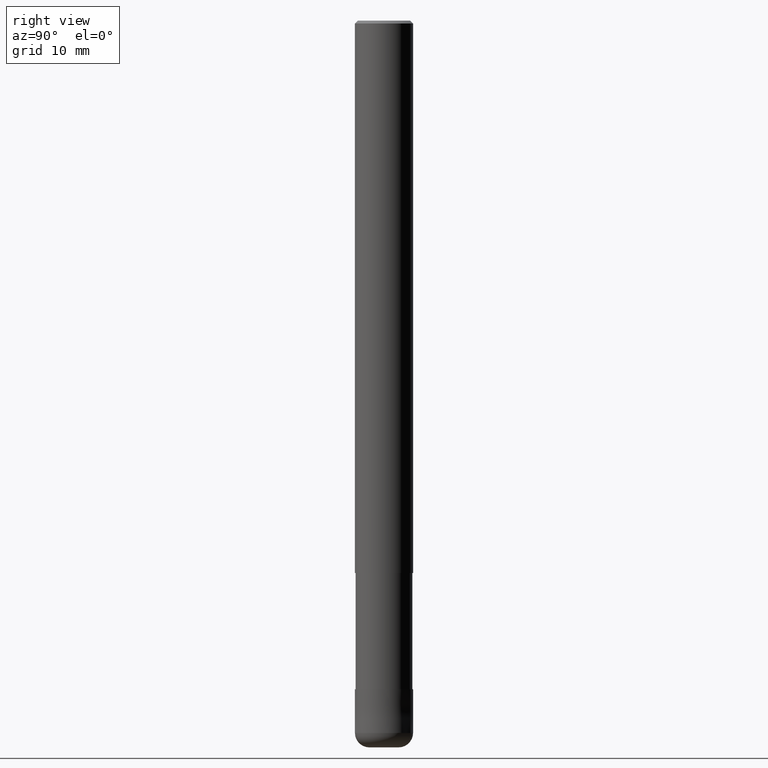
[diagram: clean part render]
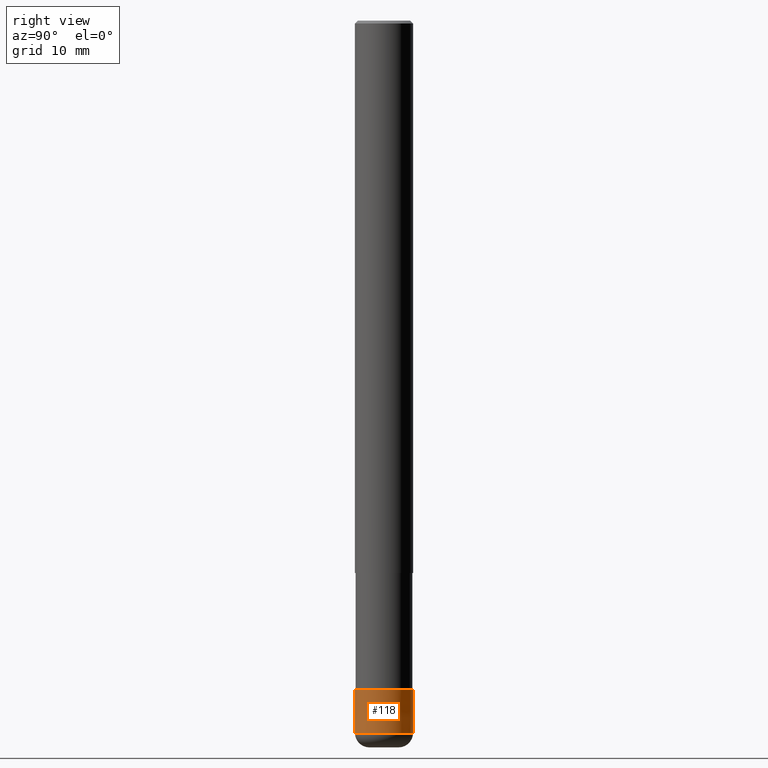
[diagram: same view with one face highlighted and labeled with its STEP entity id]
A machine part, right view. The second image highlights one B-rep face of the part: STEP entity #118.
In plain terms, the highlighted conical surface has half-angle 0.001 deg.
Its self-contained STEP definition (entity closure, byte-faithful):
#92=VERTEX_POINT('',#229);
#118=ADVANCED_FACE('',(#259),#260,.T.);
#124=VERTEX_POINT('',#267);
#126=EDGE_CURVE('',#92,#176,#269,.T.);
#128=EDGE_CURVE('',#124,#192,#271,.T.);
#154=EDGE_CURVE('',#176,#124,#298,.T.);
#166=EDGE_CURVE('',#92,#192,#311,.T.);
#176=VERTEX_POINT('',#322);
#192=VERTEX_POINT('',#341);
#229=CARTESIAN_POINT('',(0.0,3.9999,-92.0));
#259=FACE_OUTER_BOUND('',#411,.T.);
#260=CONICAL_SURFACE('',#412,3.99995,1.66666666651586E-005);
#267=CARTESIAN_POINT('',(4.89842541528951E-016,-4.0,-98.0));
#269=LINE('',#422,#423);
#271=LINE('',#426,#427);
#298=CIRCLE('',#464,4.0);
#311=CIRCLE('',#481,3.9999);
#322=CARTESIAN_POINT('',(0.0,4.0,-98.0));
#341=CARTESIAN_POINT('',(4.89830295465413E-016,-3.9999,-92.0));
#411=EDGE_LOOP('',(#588,#589,#590,#591));
#412=AXIS2_PLACEMENT_3D('',#592,#593,#594);
#422=CARTESIAN_POINT('',(-4.89836418497182E-016,3.99995,-95.0));
#423=VECTOR('',#603,1.0);
#426=CARTESIAN_POINT('',(4.89836418497182E-016,-3.99995,-95.0));
#427=VECTOR('',#604,1.0);
#464=AXIS2_PLACEMENT_3D('',#630,#631,#632);
#481=AXIS2_PLACEMENT_3D('',#645,#646,#647);
#588=ORIENTED_EDGE('',*,*,#126,.F.);
#589=ORIENTED_EDGE('',*,*,#166,.T.);
#590=ORIENTED_EDGE('',*,*,#128,.F.);
#591=ORIENTED_EDGE('',*,*,#154,.F.);
#592=CARTESIAN_POINT('',(0.0,0.0,-95.0));
#593=DIRECTION('',(0.0,-0.0,-1.0));
#594=DIRECTION('',(0.0,1.0,0.0));
#603=DIRECTION('',(-2.04101058942479E-021,1.6666666664387E-005,-0.999999999861111));
#604=DIRECTION('',(-2.04101058942479E-021,1.6666666664387E-005,0.999999999861111));
#630=CARTESIAN_POINT('',(0.0,0.0,-98.0));
#631=DIRECTION('',(0.0,0.0,-1.0));
#632=DIRECTION('',(0.0,1.0,0.0));
#645=CARTESIAN_POINT('',(0.0,0.0,-92.0));
#646=DIRECTION('',(0.0,0.0,-1.0));
#647=DIRECTION('',(0.0,1.0,0.0));